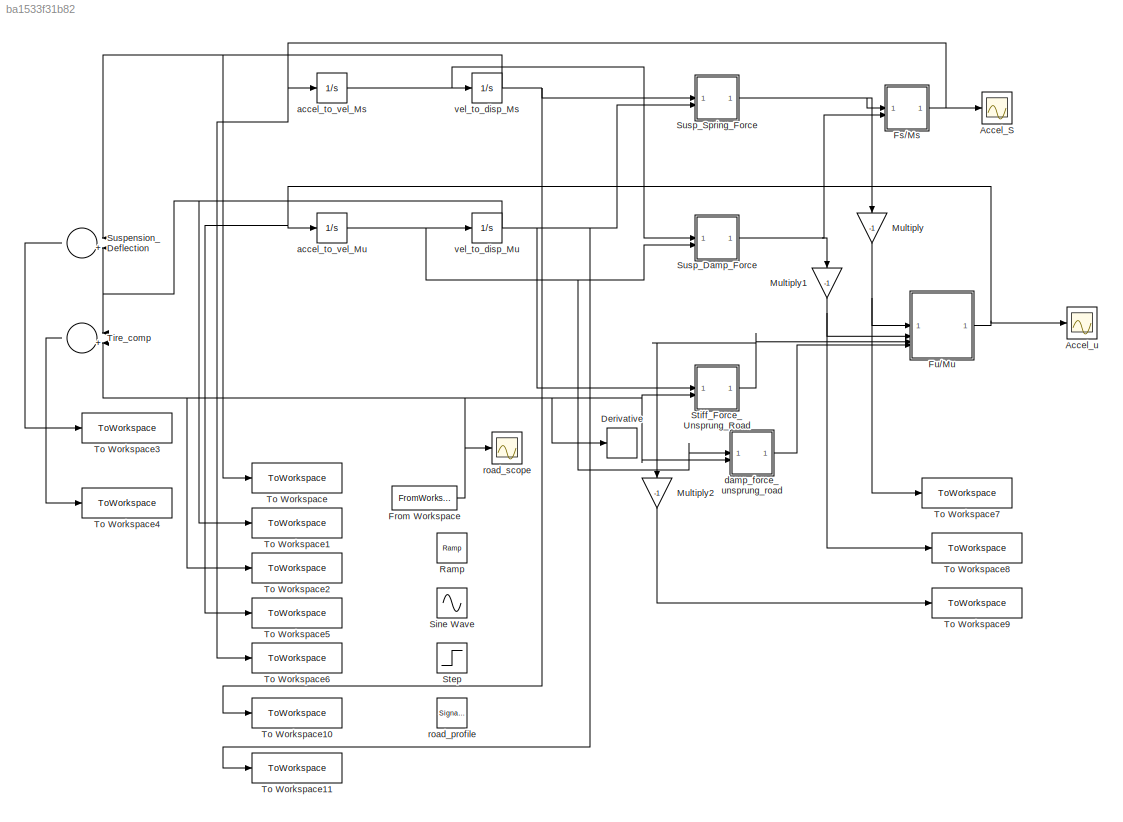
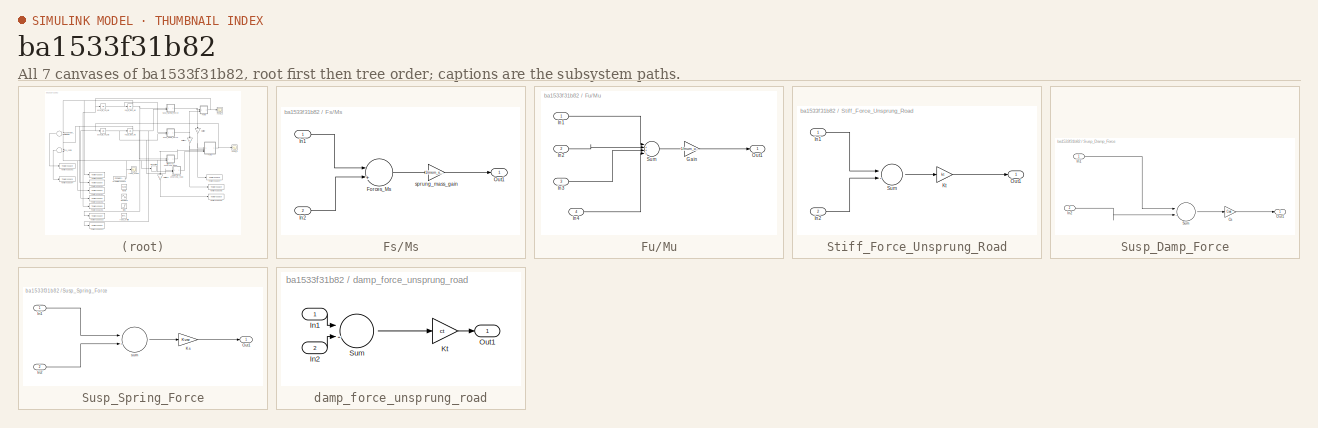
[diagram: thumbnail index - all 7 canvases of the model, root first then tree order]
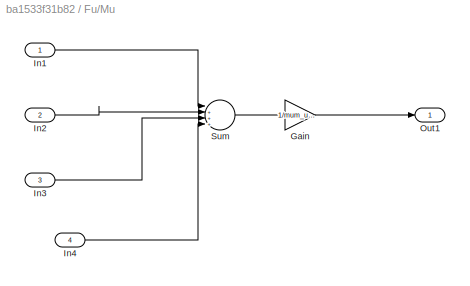
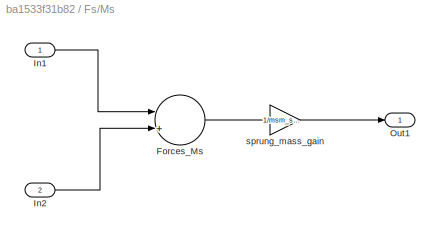
MODEL slx_ba1533f31b82
KIND model
CONFIG AbsTol = 1e-6
CONFIG EnableMultiTasking = off
CONFIG FixedStep = 0.01
CONFIG MaxStep = 0.01
CONFIG MinStep = auto
CONFIG RelTol = 1e-3
CONFIG SampleTimeConstraint = Unconstrained
CONFIG SolverName = FixedStepAuto
CONFIG StartTime = 0.0
CONFIG StopTime = 10.0
BLOCK [Scope] Accel_S
  ActiveDisplayYMaximum = 2.14338
  ActiveDisplayYMinimum = -1.37296
  DataLoggingVariableName = ScopeData2
  Floating = off
  GraphicalSettings = {"GraphicalSettings":{"LegacySettings":true,"Style":{"Style":{"AxesColor":"[0 0 0]","ChannelNames":[""],"ColorOrder":"[1 0.909803921568627 0.392156862745098;0.149019607843137 0.549019607843137 0.866666666666667;0.96078431372549 0.466666666666667 0.16078431372549;0.286274509803922 0.858823529411765 0.250980392156863;0.752941176470588 0.36078431372549 0.984313725490196;0.423529411764706 0.9568627450...<+432ch>  <repeated x3 — deduplicated; at blocks: Accel_S, Accel_u, road_scope>
  MultipleDisplayCache = [{"MaxYLimMag":2.14338,"MaxYLimReal":2.14338,"MinYLimMag":0,"MinYLimReal":-1.37296,"PlotAsMagnitudePhase":false,"ShowGrid":true,"ShowLegend":false,"Title":"%<SignalLabel>","YLabel":""}]
  NumInputPorts = 1
  WasSavedAsWebScope = on
  WindowPosition = [1624 866 592 432]
BLOCK [Scope] Accel_u
  ActiveDisplayYMaximum = 13.48174
  ActiveDisplayYMinimum = -9.08155
  DataLoggingVariableName = ScopeData1
  Floating = off
  MultipleDisplayCache = [{"MaxYLimMag":13.48174,"MaxYLimReal":13.48174,"MinYLimMag":0,"MinYLimReal":-9.08155,"PlotAsMagnitudePhase":false,"ShowGrid":true,"ShowLegend":false,"Title":"%<SignalLabel>","YLabel":""}]
  NumInputPorts = 1
  WasSavedAsWebScope = on
  WindowPosition = [1620 865 600 435]
BLOCK [Derivative] Derivative
BLOCK [FromWorkspace] From Workspace
  VariableName = [road_profile_time', road_profile_height']
BLOCK [SubSystem] Fs//Ms
BLOCK [Sum] Fs//Ms/Forces_Ms
  Inputs = |++|
BLOCK [Inport] Fs//Ms/In1
BLOCK [Inport] Fs//Ms/In2
  Port = 2
BLOCK [Outport] Fs//Ms/Out1
BLOCK [Gain] Fs//Ms/sprung_mass_gain
  Gain = 1/msm_sms
BLOCK [SubSystem] Fu//Mu
BLOCK [Gain] Fu//Mu/Gain
  Gain = 1/mum_umu
BLOCK [Inport] Fu//Mu/In1
BLOCK [Inport] Fu//Mu/In2
  Port = 2
BLOCK [Inport] Fu//Mu/In3
  Port = 3
BLOCK [Inport] Fu//Mu/In4
  Port = 4
BLOCK [Outport] Fu//Mu/Out1
BLOCK [Sum] Fu//Mu/Sum
  Inputs = |++++|
BLOCK [Gain] Multiply
  Gain = -1
  NameLocation = left
BLOCK [Gain] Multiply1
  Gain = -1
  NameLocation = left
BLOCK [Gain] Multiply2
  Gain = -1
  NameLocation = left
BLOCK [Reference] Ramp  REF=simulink/Sources/Ramp
  SourceBlock = simulink/Sources/Ramp
  SourceType = Ramp
BLOCK [Sin] Sine Wave
  SampleTime = 0
BLOCK [Step] Step
  After = 0.05
  SampleTime = 0
BLOCK [SubSystem] Stiff_Force_Unsprung_Road
BLOCK [Inport] Stiff_Force_Unsprung_Road/In1
BLOCK [Inport] Stiff_Force_Unsprung_Road/In2
  Port = 2
BLOCK [Gain] Stiff_Force_Unsprung_Road/Kt
  Gain = kt
BLOCK [Outport] Stiff_Force_Unsprung_Road/Out1
BLOCK [Sum] Stiff_Force_Unsprung_Road/Sum
  Inputs = |-+|
BLOCK [SubSystem] Susp_Damp_Force
BLOCK [Gain] Susp_Damp_Force/Cs
  Gain = Cvar
BLOCK [Inport] Susp_Damp_Force/In1
BLOCK [Inport] Susp_Damp_Force/In2
  Port = 2
BLOCK [Outport] Susp_Damp_Force/Out1
BLOCK [Sum] Susp_Damp_Force/Sum
  Inputs = |-+|
BLOCK [SubSystem] Susp_Spring_Force
BLOCK [Inport] Susp_Spring_Force/In1
BLOCK [Inport] Susp_Spring_Force/In2
  Port = 2
BLOCK [Gain] Susp_Spring_Force/Ks
  Gain = Kvar
BLOCK [Outport] Susp_Spring_Force/Out1
BLOCK [Sum] Susp_Spring_Force/sum
  Inputs = |-+|
  NameLocation = top
BLOCK [Sum] Suspension_Deflection
  Inputs = |+-|
BLOCK [Sum] Tire_comp
  Inputs = |+-|
BLOCK [ToWorkspace] To Workspace
  FixptAsFi = on
  MaxDataPoints = inf
  SampleTime = -1
  VariableName = zs
BLOCK [ToWorkspace] To Workspace1
  FixptAsFi = on
  MaxDataPoints = inf
  SampleTime = -1
  VariableName = zus
BLOCK [ToWorkspace] To Workspace10
  FixptAsFi = on
  MaxDataPoints = inf
  SampleTime = -1
  VariableName = vs
BLOCK [ToWorkspace] To Workspace11
  FixptAsFi = on
  MaxDataPoints = inf
  SampleTime = -1
  VariableName = vus
BLOCK [ToWorkspace] To Workspace2
  FixptAsFi = on
  MaxDataPoints = inf
  SampleTime = -1
  VariableName = y_road
BLOCK [ToWorkspace] To Workspace3
  FixptAsFi = on
  MaxDataPoints = inf
  SampleTime = -1
  SaveFormat = Timeseries
  VariableName = susp_def
BLOCK [ToWorkspace] To Workspace4
  FixptAsFi = on
  MaxDataPoints = inf
  SampleTime = -1
  SaveFormat = Timeseries
  VariableName = tire_comp
BLOCK [ToWorkspace] To Workspace5
  FixptAsFi = on
  MaxDataPoints = inf
  SampleTime = -1
  VariableName = aus
BLOCK [ToWorkspace] To Workspace6
  FixptAsFi = on
  MaxDataPoints = inf
  SampleTime = -1
  VariableName = as
BLOCK [ToWorkspace] To Workspace7
  FixptAsFi = on
  MaxDataPoints = inf
  SampleTime = -1
  VariableName = Fs
BLOCK [ToWorkspace] To Workspace8
  FixptAsFi = on
  MaxDataPoints = inf
  SampleTime = -1
  VariableName = Fd
BLOCK [ToWorkspace] To Workspace9
  FixptAsFi = on
  MaxDataPoints = inf
  SampleTime = -1
  VariableName = Ft
BLOCK [Integrator] accel_to_vel_Ms
BLOCK [Integrator] accel_to_vel_Mu
BLOCK [SubSystem] damp_force_unsprung_road
BLOCK [Inport] damp_force_unsprung_road/In1
BLOCK [Inport] damp_force_unsprung_road/In2
  Port = 2
BLOCK [Gain] damp_force_unsprung_road/Kt
  Gain = ct
BLOCK [Outport] damp_force_unsprung_road/Out1
BLOCK [Sum] damp_force_unsprung_road/Sum
  Inputs = |-+|
BLOCK [SignalGenerator] road_profile
  Amplitude = 0.2
  Frequency = 0.2
BLOCK [Scope] road_scope
  ActiveDisplayYMaximum = 0.25
  ActiveDisplayYMinimum = -0.25
  Floating = off
  MultipleDisplayCache = [{"MaxYLimMag":0.25,"MaxYLimReal":0.25,"MinYLimMag":0,"MinYLimReal":-0.25,"PlotAsMagnitudePhase":false,"ShowGrid":true,"ShowLegend":false,"Title":"%<SignalLabel>","YLabel":""}]
  NumInputPorts = 1
  WasSavedAsWebScope = on
  WindowPosition = [1632 871 568 423]
BLOCK [Integrator] vel_to_disp_Ms
BLOCK [Integrator] vel_to_disp_Mu
NET From Workspace:1 -> Derivative:1, Stiff_Force_Unsprung_Road:2, Tire_comp:2, To Workspace2:1, damp_force_unsprung_road:2, road_scope:1
LINE Fs//Ms/Forces_Ms:1 -> Fs//Ms/sprung_mass_gain:1
LINE Fs//Ms/In1:1 -> Fs//Ms/Forces_Ms:1
LINE Fs//Ms/In2:1 -> Fs//Ms/Forces_Ms:2
LINE Fs//Ms/sprung_mass_gain:1 -> Fs//Ms/Out1:1
NET Fs//Ms:1 -> Accel_S:1, To Workspace6:1, accel_to_vel_Ms:1
LINE Fu//Mu/Gain:1 -> Fu//Mu/Out1:1
LINE Fu//Mu/In1:1 -> Fu//Mu/Sum:1
LINE Fu//Mu/In2:1 -> Fu//Mu/Sum:2
LINE Fu//Mu/In3:1 -> Fu//Mu/Sum:3
LINE Fu//Mu/In4:1 -> Fu//Mu/Sum:4
LINE Fu//Mu/Sum:1 -> Fu//Mu/Gain:1
NET Fu//Mu:1 -> Accel_u:1, To Workspace5:1, accel_to_vel_Mu:1
NET Multiply1:1 -> Fu//Mu:2, To Workspace8:1
LINE Multiply2:1 -> To Workspace9:1
NET Multiply:1 -> Fu//Mu:1, To Workspace7:1
LINE Stiff_Force_Unsprung_Road/In1:1 -> Stiff_Force_Unsprung_Road/Sum:1
LINE Stiff_Force_Unsprung_Road/In2:1 -> Stiff_Force_Unsprung_Road/Sum:2
LINE Stiff_Force_Unsprung_Road/Kt:1 -> Stiff_Force_Unsprung_Road/Out1:1
LINE Stiff_Force_Unsprung_Road/Sum:1 -> Stiff_Force_Unsprung_Road/Kt:1
NET Stiff_Force_Unsprung_Road:1 -> Fu//Mu:3, Multiply2:1
LINE Susp_Damp_Force/Cs:1 -> Susp_Damp_Force/Out1:1
LINE Susp_Damp_Force/In1:1 -> Susp_Damp_Force/Sum:1
LINE Susp_Damp_Force/In2:1 -> Susp_Damp_Force/Sum:2
LINE Susp_Damp_Force/Sum:1 -> Susp_Damp_Force/Cs:1
NET Susp_Damp_Force:1 -> Fs//Ms:2, Multiply1:1
LINE Susp_Spring_Force/In1:1 -> Susp_Spring_Force/sum:1
LINE Susp_Spring_Force/In2:1 -> Susp_Spring_Force/sum:2
LINE Susp_Spring_Force/Ks:1 -> Susp_Spring_Force/Out1:1
LINE Susp_Spring_Force/sum:1 -> Susp_Spring_Force/Ks:1
NET Susp_Spring_Force:1 -> Fs//Ms:1, Multiply:1
LINE Suspension_Deflection:1 -> To Workspace3:1
LINE Tire_comp:1 -> To Workspace4:1
NET accel_to_vel_Ms:1 -> Susp_Damp_Force:1, vel_to_disp_Ms:1
NET accel_to_vel_Mu:1 -> Susp_Damp_Force:2, damp_force_unsprung_road:1, vel_to_disp_Mu:1
LINE damp_force_unsprung_road/In1:1 -> damp_force_unsprung_road/Sum:1
LINE damp_force_unsprung_road/In2:1 -> damp_force_unsprung_road/Sum:2
LINE damp_force_unsprung_road/Kt:1 -> damp_force_unsprung_road/Out1:1
LINE damp_force_unsprung_road/Sum:1 -> damp_force_unsprung_road/Kt:1
LINE damp_force_unsprung_road:1 -> Fu//Mu:4
NET vel_to_disp_Ms:1 -> Susp_Spring_Force:1, Suspension_Deflection:1, To Workspace10:1, To Workspace:1
NET vel_to_disp_Mu:1 -> Stiff_Force_Unsprung_Road:1, Susp_Spring_Force:2, Suspension_Deflection:2, Tire_comp:1, To Workspace11:1, To Workspace1:1
note: NET lines group one-source signal fan-out (src -> all destinations, sorted); 1:1 wires keep LINE
